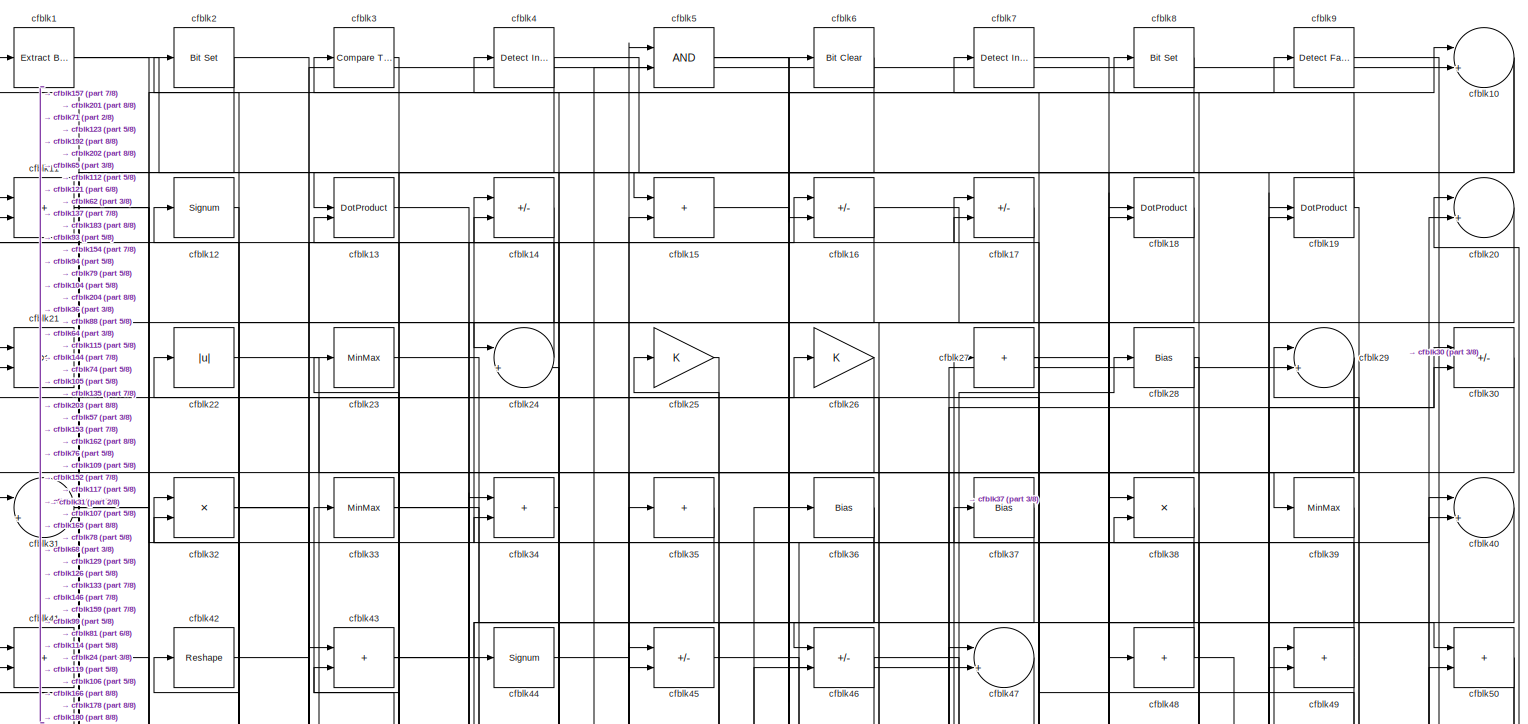
[diagram: root canvas - part 1/8, full width, top band]
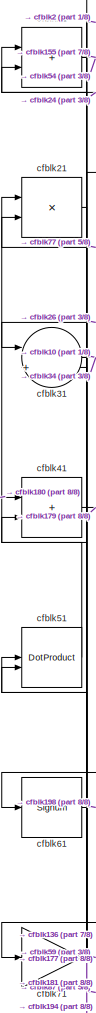
[diagram: root canvas - part 2/8, top left region]
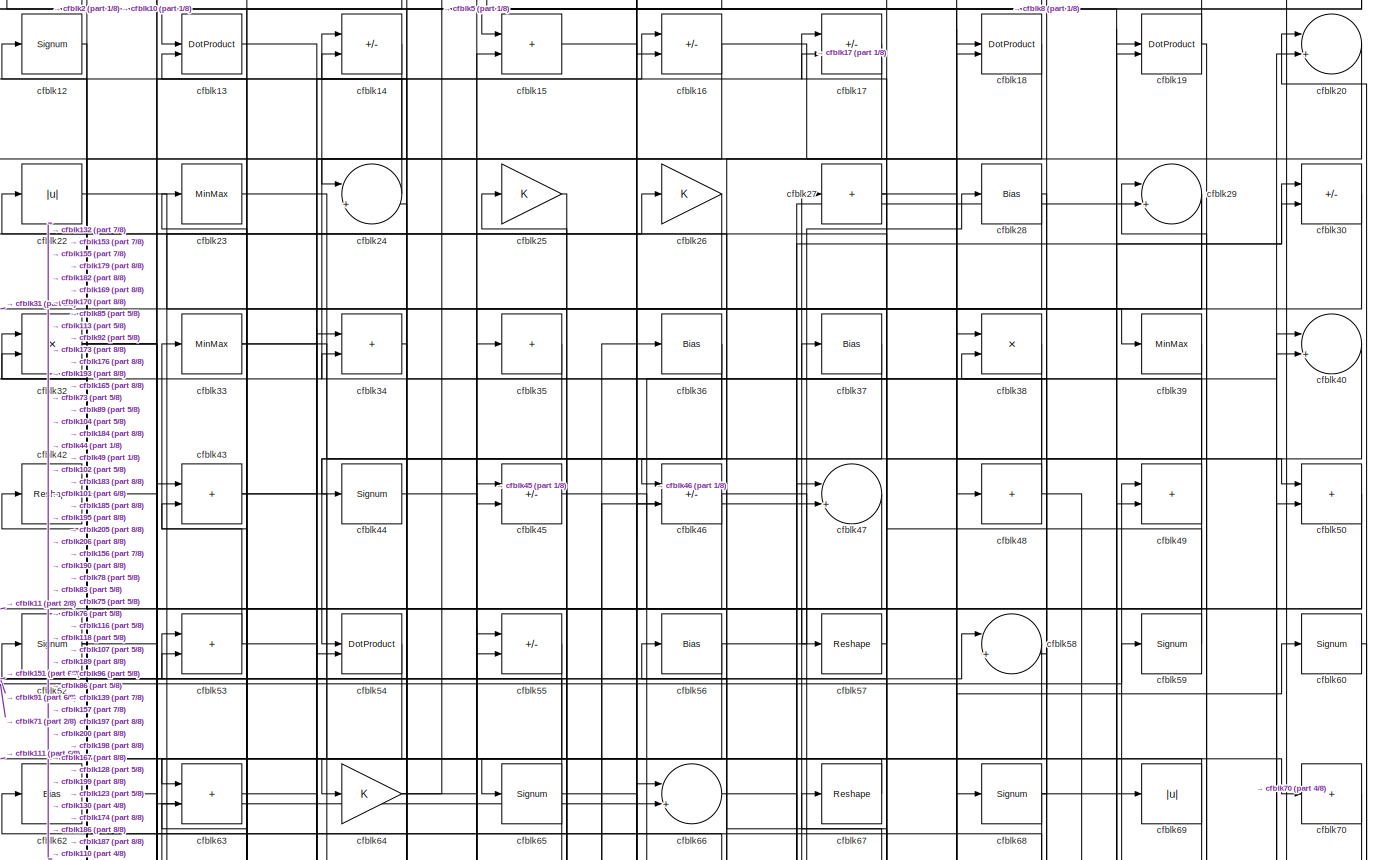
[diagram: root canvas - part 3/8, full width, top band]
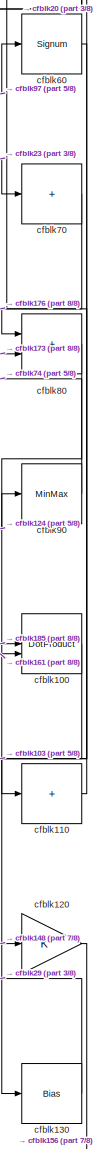
[diagram: root canvas - part 4/8, middle right region]
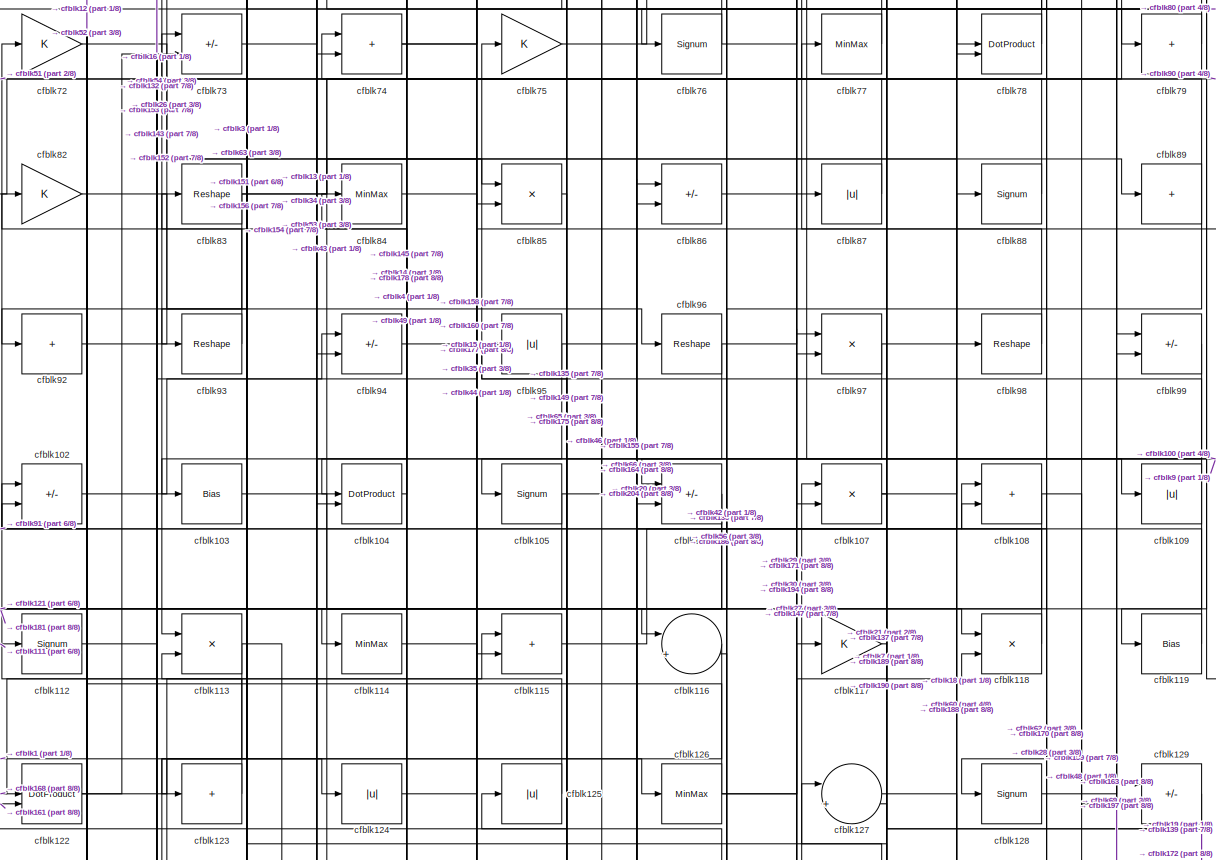
[diagram: root canvas - part 5/8, full width, middle band]
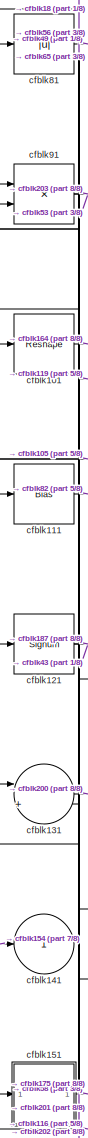
[diagram: root canvas - part 6/8, middle left region]
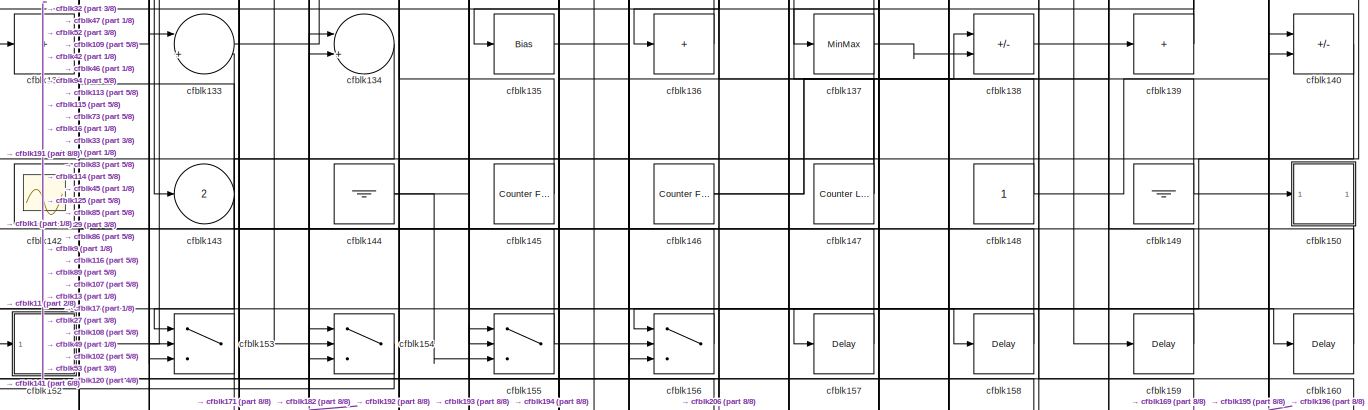
[diagram: root canvas - part 7/8, full width, bottom band]
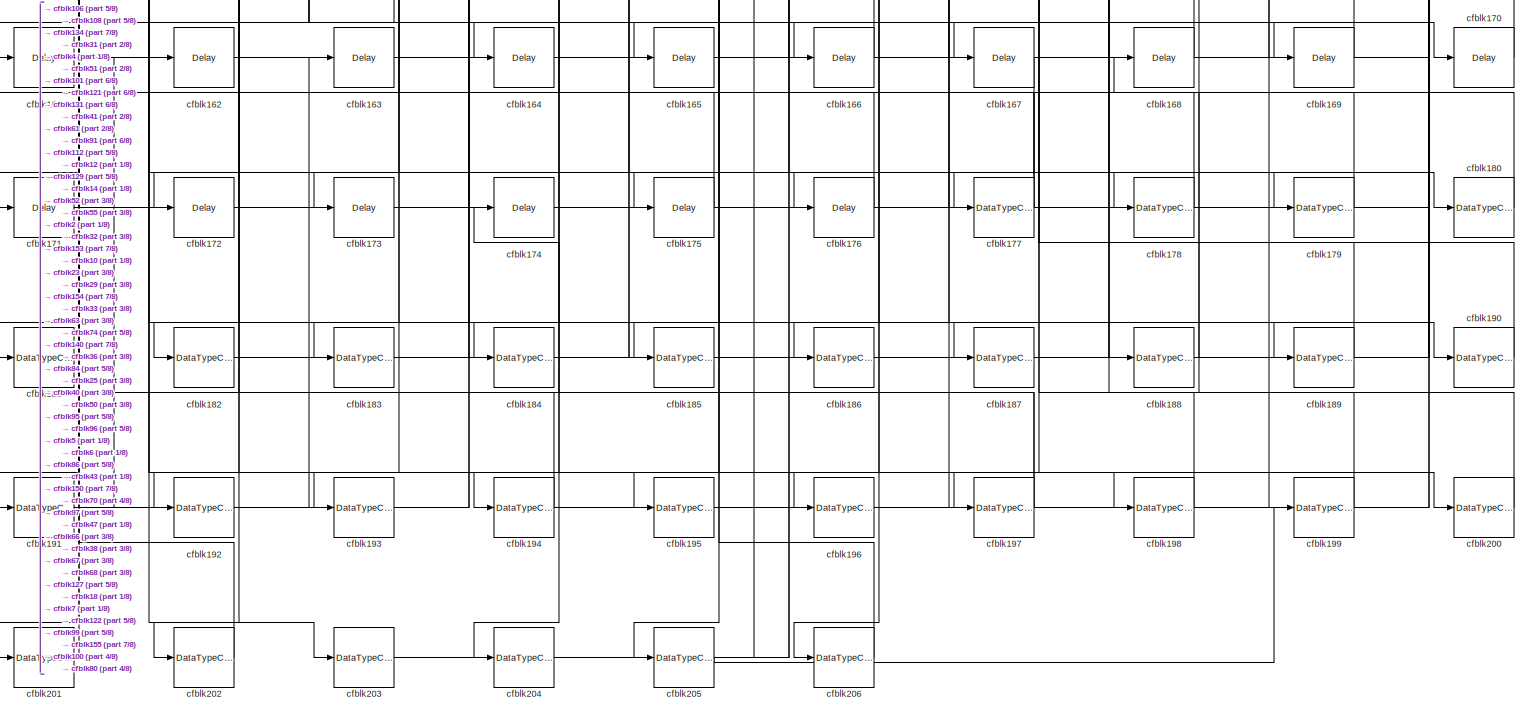
[diagram: root canvas - part 8/8, full width, bottom band]
MODEL slx_51adaf56659c
KIND model
CONFIG AbsTol = auto
CONFIG EnableMultiTasking = off
CONFIG FixedStep = auto
CONFIG MaxStep = auto
CONFIG MinStep = auto
CONFIG RelTol = 1e-3
CONFIG SampleTimeConstraint = Unconstrained
CONFIG SolverName = VariableStepAuto
CONFIG StartTime = 0.0
CONFIG StopTime = 10.0
BLOCK [Reference] cfblk1  REF=simulink/Logic and Bit
Operations/Extract Bits
  LibrarySourceBlock = hdlsllib/Logic and Bit\nOperations/Extract Bits
  SourceBlock = simulink/Logic and Bit\nOperations/Extract Bits
  SourceType = Extract Bits
BLOCK [Sum] cfblk10
  Inputs = |++
BLOCK [DotProduct] cfblk100
  OutDataTypeStr = Inherit: Inherit via internal rule
BLOCK [Reshape] cfblk101
BLOCK [Sum] cfblk102
  IconShape = rectangular
  Inputs = +-
BLOCK [Bias] cfblk103
  Bias = 0.0
  SaturateOnIntegerOverflow = off
BLOCK [DotProduct] cfblk104
  OutDataTypeStr = Inherit: Inherit via internal rule
BLOCK [Signum] cfblk105
BLOCK [Sum] cfblk106
  IconShape = rectangular
  Inputs = +-
BLOCK [Product] cfblk107
  Inputs = */
  RndMeth = Zero
  SaturateOnIntegerOverflow = on
BLOCK [Sum] cfblk108
  IconShape = rectangular
BLOCK [Abs] cfblk109
  SaturateOnIntegerOverflow = off
BLOCK [Sum] cfblk11
  IconShape = rectangular
BLOCK [Sum] cfblk110
  IconShape = rectangular
  Inputs = +
BLOCK [Bias] cfblk111
  Bias = 0.0
  SaturateOnIntegerOverflow = off
BLOCK [Signum] cfblk112
BLOCK [Product] cfblk113
  Inputs = */
  RndMeth = Zero
  SaturateOnIntegerOverflow = on
BLOCK [MinMax] cfblk114
BLOCK [Sum] cfblk115
  IconShape = rectangular
BLOCK [Sum] cfblk116
  Inputs = |++
BLOCK [Gain] cfblk117
BLOCK [Product] cfblk118
  Inputs = */
  RndMeth = Zero
  SaturateOnIntegerOverflow = on
BLOCK [Bias] cfblk119
  Bias = 0.0
  SaturateOnIntegerOverflow = off
BLOCK [Signum] cfblk12
BLOCK [Gain] cfblk120
BLOCK [Signum] cfblk121
BLOCK [DotProduct] cfblk122
  OutDataTypeStr = Inherit: Inherit via internal rule
BLOCK [Sum] cfblk123
  IconShape = rectangular
  Inputs = +
BLOCK [Abs] cfblk124
  SaturateOnIntegerOverflow = off
BLOCK [Abs] cfblk125
  SaturateOnIntegerOverflow = off
BLOCK [MinMax] cfblk126
BLOCK [Sum] cfblk127
  Inputs = |++
BLOCK [Signum] cfblk128
BLOCK [Sum] cfblk129
  IconShape = rectangular
  Inputs = +-
BLOCK [DotProduct] cfblk13
  OutDataTypeStr = Inherit: Inherit via internal rule
BLOCK [Bias] cfblk130
  Bias = 0.0
  SaturateOnIntegerOverflow = off
BLOCK [Sum] cfblk131
  Inputs = |++
BLOCK [Sum] cfblk132
  IconShape = rectangular
  Inputs = +
BLOCK [Sum] cfblk133
  Inputs = |++
BLOCK [Sum] cfblk134
  Inputs = |++
BLOCK [Bias] cfblk135
  Bias = 0.0
  SaturateOnIntegerOverflow = off
BLOCK [Sum] cfblk136
  IconShape = rectangular
  Inputs = +
BLOCK [MinMax] cfblk137
BLOCK [Sum] cfblk138
  IconShape = rectangular
  Inputs = +-
BLOCK [Sum] cfblk139
  IconShape = rectangular
  Inputs = +
BLOCK [Sum] cfblk14
  IconShape = rectangular
  Inputs = +-
BLOCK [Sum] cfblk140
  IconShape = rectangular
  Inputs = +-
BLOCK [Outport] cfblk141
  VectorParamsAs1DForOutWhenUnconnected = off
BLOCK [Scope] cfblk142
  Floating = on
  NumInputPorts = 1
  ScopeSpecificationString = Simulink.scopes.TimeScopeBlockCfg('CurrentConfiguration', extmgr.ConfigurationSet(extmgr.Configuration('Core','General UI',true,'FigureColor',[0.156862745098039 0.156862745098039 0.156862745098039]),extmgr.Configuration('Core','Source UI',true),extmgr.Configuration('Sources','WiredSimulink',true,'DataLoggingVariableName','ScopeData1','DataLoggingSaveFormat','StructureWithTime','DataLoggingLimitDat...<+2713ch>
BLOCK [Outport] cfblk143
  Port = 2
  VectorParamsAs1DForOutWhenUnconnected = off
BLOCK [Ground] cfblk144
BLOCK [Reference] cfblk145  REF=hdlsllib/Sources/Counter
Free-Running
  SourceBlock = hdlsllib/Sources/Counter\nFree-Running
  SourceType = Counter Free-Running
BLOCK [Reference] cfblk146  REF=hdlsllib/Sources/Counter
Free-Running
  SourceBlock = hdlsllib/Sources/Counter\nFree-Running
  SourceType = Counter Free-Running
BLOCK [Reference] cfblk147  REF=hdlsllib/Sources/Counter
Limited
  SourceBlock = hdlsllib/Sources/Counter\nLimited
  SourceType = Counter Limited
BLOCK [Constant] cfblk148
  SampleTime = -1
BLOCK [Ground] cfblk149
BLOCK [Sum] cfblk15
  IconShape = rectangular
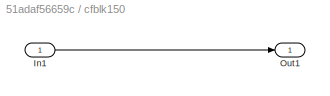
BLOCK [SubSystem] cfblk150
  LibrarySourceBlock = hdlsllib/Ports &\nSubsystems/Subsystem
BLOCK [Inport] cfblk150/In1
BLOCK [Outport] cfblk150/Out1
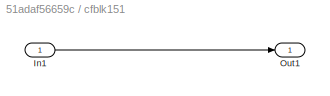
BLOCK [SubSystem] cfblk151
  LibrarySourceBlock = hdlsllib/Ports &\nSubsystems/Subsystem
BLOCK [Inport] cfblk151/In1
BLOCK [Outport] cfblk151/Out1
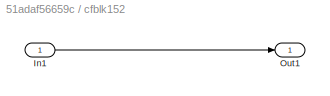
BLOCK [SubSystem] cfblk152
  LibrarySourceBlock = hdlsllib/Ports &\nSubsystems/Subsystem
BLOCK [Inport] cfblk152/In1
BLOCK [Outport] cfblk152/Out1
BLOCK [Switch] cfblk153
  InputSameDT = off
  SaturateOnIntegerOverflow = off
BLOCK [Switch] cfblk154
  InputSameDT = off
  SaturateOnIntegerOverflow = off
BLOCK [Switch] cfblk155
  InputSameDT = off
  SaturateOnIntegerOverflow = off
BLOCK [Switch] cfblk156
  InputSameDT = off
  SaturateOnIntegerOverflow = off
BLOCK [Delay] cfblk157
  InputPortMap = u0
  SampleTime = 1
BLOCK [Delay] cfblk158
  InputPortMap = u0
  SampleTime = 1
BLOCK [Delay] cfblk159
  InputPortMap = u0
  SampleTime = 1
BLOCK [Sum] cfblk16
  IconShape = rectangular
  Inputs = +-
BLOCK [Delay] cfblk160
  InputPortMap = u0
  SampleTime = 1
BLOCK [Delay] cfblk161
  InputPortMap = u0
  SampleTime = 1
BLOCK [Delay] cfblk162
  InputPortMap = u0
  SampleTime = 1
BLOCK [Delay] cfblk163
  InputPortMap = u0
  SampleTime = 1
BLOCK [Delay] cfblk164
  InputPortMap = u0
  SampleTime = 1
BLOCK [Delay] cfblk165
  InputPortMap = u0
  SampleTime = 1
BLOCK [Delay] cfblk166
  InputPortMap = u0
  SampleTime = 1
BLOCK [Delay] cfblk167
  InputPortMap = u0
  SampleTime = 1
BLOCK [Delay] cfblk168
  InputPortMap = u0
  SampleTime = 1
BLOCK [Delay] cfblk169
  InputPortMap = u0
  SampleTime = 1
BLOCK [Sum] cfblk17
  IconShape = rectangular
  Inputs = +-
BLOCK [Delay] cfblk170
  InputPortMap = u0
  SampleTime = 1
BLOCK [Delay] cfblk171
  InputPortMap = u0
  SampleTime = 1
BLOCK [Delay] cfblk172
  InputPortMap = u0
  SampleTime = 1
BLOCK [Delay] cfblk173
  InputPortMap = u0
  SampleTime = 1
BLOCK [Delay] cfblk174
  InputPortMap = u0
  SampleTime = 1
BLOCK [Delay] cfblk175
  InputPortMap = u0
  SampleTime = 1
BLOCK [Delay] cfblk176
  InputPortMap = u0
  SampleTime = 1
BLOCK [DataTypeConversion] cfblk177
  RndMeth = Floor
  SaturateOnIntegerOverflow = off
BLOCK [DataTypeConversion] cfblk178
  OutDataTypeStr = uint8
  RndMeth = Floor
  SaturateOnIntegerOverflow = off
BLOCK [DataTypeConversion] cfblk179
  OutDataTypeStr = uint8
  RndMeth = Floor
  SaturateOnIntegerOverflow = off
BLOCK [DotProduct] cfblk18
  OutDataTypeStr = Inherit: Inherit via internal rule
BLOCK [DataTypeConversion] cfblk180
  OutDataTypeStr = uint8
  RndMeth = Floor
  SaturateOnIntegerOverflow = off
BLOCK [DataTypeConversion] cfblk181
  OutDataTypeStr = uint8
  RndMeth = Floor
  SaturateOnIntegerOverflow = off
BLOCK [DataTypeConversion] cfblk182
  RndMeth = Floor
  SaturateOnIntegerOverflow = off
BLOCK [DataTypeConversion] cfblk183
  OutDataTypeStr = uint8
  RndMeth = Floor
  SaturateOnIntegerOverflow = off
BLOCK [DataTypeConversion] cfblk184
  OutDataTypeStr = uint8
  RndMeth = Floor
  SaturateOnIntegerOverflow = off
BLOCK [DataTypeConversion] cfblk185
  OutDataTypeStr = uint8
  RndMeth = Floor
  SaturateOnIntegerOverflow = off
BLOCK [DataTypeConversion] cfblk186
  OutDataTypeStr = uint8
  RndMeth = Floor
  SaturateOnIntegerOverflow = off
BLOCK [DataTypeConversion] cfblk187
  OutDataTypeStr = uint8
  RndMeth = Floor
  SaturateOnIntegerOverflow = off
BLOCK [DataTypeConversion] cfblk188
  OutDataTypeStr = uint8
  RndMeth = Floor
  SaturateOnIntegerOverflow = off
BLOCK [DataTypeConversion] cfblk189
  OutDataTypeStr = uint8
  RndMeth = Floor
  SaturateOnIntegerOverflow = off
BLOCK [DotProduct] cfblk19
  OutDataTypeStr = Inherit: Inherit via internal rule
BLOCK [DataTypeConversion] cfblk190
  OutDataTypeStr = uint8
  RndMeth = Floor
  SaturateOnIntegerOverflow = off
BLOCK [DataTypeConversion] cfblk191
  RndMeth = Floor
  SaturateOnIntegerOverflow = off
BLOCK [DataTypeConversion] cfblk192
  OutDataTypeStr = uint8
  RndMeth = Floor
  SaturateOnIntegerOverflow = off
BLOCK [DataTypeConversion] cfblk193
  OutDataTypeStr = uint8
  RndMeth = Floor
  SaturateOnIntegerOverflow = off
BLOCK [DataTypeConversion] cfblk194
  RndMeth = Floor
  SaturateOnIntegerOverflow = off
BLOCK [DataTypeConversion] cfblk195
  OutDataTypeStr = uint8
  RndMeth = Floor
  SaturateOnIntegerOverflow = off
BLOCK [DataTypeConversion] cfblk196
  OutDataTypeStr = uint8
  RndMeth = Floor
  SaturateOnIntegerOverflow = off
BLOCK [DataTypeConversion] cfblk197
  RndMeth = Floor
  SaturateOnIntegerOverflow = off
BLOCK [DataTypeConversion] cfblk198
  OutDataTypeStr = uint8
  RndMeth = Floor
  SaturateOnIntegerOverflow = off
BLOCK [DataTypeConversion] cfblk199
  OutDataTypeStr = uint8
  RndMeth = Floor
  SaturateOnIntegerOverflow = off
BLOCK [Reference] cfblk2  REF=simulink/Logic and Bit
Operations/Bit Set
  LibrarySourceBlock = hdlsllib/Logic and Bit\nOperations/Bit Set
  SourceBlock = simulink/Logic and Bit\nOperations/Bit Set
  SourceType = Bit Set
BLOCK [Sum] cfblk20
  Inputs = |++
BLOCK [DataTypeConversion] cfblk200
  OutDataTypeStr = uint8
  RndMeth = Floor
  SaturateOnIntegerOverflow = off
BLOCK [DataTypeConversion] cfblk201
  OutDataTypeStr = uint8
  RndMeth = Floor
  SaturateOnIntegerOverflow = off
BLOCK [DataTypeConversion] cfblk202
  OutDataTypeStr = uint8
  RndMeth = Floor
  SaturateOnIntegerOverflow = off
BLOCK [DataTypeConversion] cfblk203
  OutDataTypeStr = boolean
  RndMeth = Floor
  SaturateOnIntegerOverflow = off
BLOCK [DataTypeConversion] cfblk204
  OutDataTypeStr = uint8
  RndMeth = Floor
  SaturateOnIntegerOverflow = off
BLOCK [DataTypeConversion] cfblk205
  RndMeth = Floor
  SaturateOnIntegerOverflow = off
BLOCK [DataTypeConversion] cfblk206
  OutDataTypeStr = uint8
  RndMeth = Floor
  SaturateOnIntegerOverflow = off
BLOCK [Product] cfblk21
  Inputs = */
  RndMeth = Zero
  SaturateOnIntegerOverflow = on
BLOCK [Abs] cfblk22
  SaturateOnIntegerOverflow = off
BLOCK [MinMax] cfblk23
BLOCK [Sum] cfblk24
  Inputs = |++
BLOCK [Gain] cfblk25
BLOCK [Gain] cfblk26
BLOCK [Sum] cfblk27
  IconShape = rectangular
  Inputs = +
BLOCK [Bias] cfblk28
  Bias = 0.0
  SaturateOnIntegerOverflow = off
BLOCK [Sum] cfblk29
  Inputs = |++
BLOCK [Reference] cfblk3  REF=hdlsllib/Logic and Bit
Operations/Compare
To Zero
  SourceBlock = hdlsllib/Logic and Bit\nOperations/Compare\nTo Zero
  SourceType = Compare To Zero
BLOCK [Sum] cfblk30
  IconShape = rectangular
  Inputs = +-
BLOCK [Sum] cfblk31
  Inputs = |++
BLOCK [Product] cfblk32
  Inputs = */
  RndMeth = Zero
  SaturateOnIntegerOverflow = on
BLOCK [MinMax] cfblk33
BLOCK [Sum] cfblk34
  IconShape = rectangular
BLOCK [Sum] cfblk35
  IconShape = rectangular
  Inputs = +
BLOCK [Bias] cfblk36
  Bias = 0.0
  SaturateOnIntegerOverflow = off
BLOCK [Bias] cfblk37
  Bias = 0.0
  SaturateOnIntegerOverflow = off
BLOCK [Product] cfblk38
  Inputs = */
  RndMeth = Zero
  SaturateOnIntegerOverflow = on
BLOCK [MinMax] cfblk39
BLOCK [Reference] cfblk4  REF=simulink/Logic and Bit
Operations/Detect
Increase
  LibrarySourceBlock = hdlsllib/Logic and Bit\nOperations/Detect\nIncrease
  SourceBlock = simulink/Logic and Bit\nOperations/Detect\nIncrease
  SourceType = Detect Increase
BLOCK [Sum] cfblk40
  Inputs = |++
BLOCK [Sum] cfblk41
  IconShape = rectangular
BLOCK [Reshape] cfblk42
BLOCK [Sum] cfblk43
  IconShape = rectangular
BLOCK [Signum] cfblk44
BLOCK [Sum] cfblk45
  IconShape = rectangular
  Inputs = +-
BLOCK [Sum] cfblk46
  IconShape = rectangular
  Inputs = +-
BLOCK [Sum] cfblk47
  Inputs = |++
BLOCK [Sum] cfblk48
  IconShape = rectangular
  Inputs = +
BLOCK [Sum] cfblk49
  IconShape = rectangular
BLOCK [Logic] cfblk5
  AllPortsSameDT = off
  OutDataTypeStr = boolean
BLOCK [Sum] cfblk50
  IconShape = rectangular
BLOCK [DotProduct] cfblk51
  OutDataTypeStr = Inherit: Inherit via internal rule
BLOCK [Signum] cfblk52
BLOCK [Sum] cfblk53
  IconShape = rectangular
BLOCK [DotProduct] cfblk54
  OutDataTypeStr = Inherit: Inherit via internal rule
BLOCK [Sum] cfblk55
  IconShape = rectangular
  Inputs = +-
BLOCK [Bias] cfblk56
  Bias = 0.0
  SaturateOnIntegerOverflow = off
BLOCK [Reshape] cfblk57
BLOCK [Sum] cfblk58
  Inputs = |++
BLOCK [Signum] cfblk59
BLOCK [Reference] cfblk6  REF=simulink/Logic and Bit
Operations/Bit Clear
  LibrarySourceBlock = hdlsllib/Logic and Bit\nOperations/Bit Clear
  SourceBlock = simulink/Logic and Bit\nOperations/Bit Clear
  SourceType = Bit Clear
BLOCK [Signum] cfblk60
BLOCK [Signum] cfblk61
BLOCK [Bias] cfblk62
  Bias = 0.0
  SaturateOnIntegerOverflow = off
BLOCK [Sum] cfblk63
  IconShape = rectangular
BLOCK [Gain] cfblk64
BLOCK [Signum] cfblk65
BLOCK [Sum] cfblk66
  Inputs = |++
BLOCK [Reshape] cfblk67
BLOCK [Signum] cfblk68
BLOCK [Abs] cfblk69
  SaturateOnIntegerOverflow = off
BLOCK [Reference] cfblk7  REF=simulink/Logic and Bit
Operations/Detect
Increase
  LibrarySourceBlock = hdlsllib/Logic and Bit\nOperations/Detect\nIncrease
  SourceBlock = simulink/Logic and Bit\nOperations/Detect\nIncrease
  SourceType = Detect Increase
BLOCK [Sum] cfblk70
  IconShape = rectangular
  Inputs = +
BLOCK [Gain] cfblk71
BLOCK [Gain] cfblk72
BLOCK [Sum] cfblk73
  IconShape = rectangular
  Inputs = +-
BLOCK [Sum] cfblk74
  IconShape = rectangular
BLOCK [Gain] cfblk75
BLOCK [Signum] cfblk76
BLOCK [MinMax] cfblk77
BLOCK [DotProduct] cfblk78
  OutDataTypeStr = Inherit: Inherit via internal rule
BLOCK [Sum] cfblk79
  IconShape = rectangular
  Inputs = +
BLOCK [Reference] cfblk8  REF=simulink/Logic and Bit
Operations/Bit Set
  LibrarySourceBlock = hdlsllib/Logic and Bit\nOperations/Bit Set
  SourceBlock = simulink/Logic and Bit\nOperations/Bit Set
  SourceType = Bit Set
BLOCK [Sum] cfblk80
  IconShape = rectangular
BLOCK [Abs] cfblk81
  SaturateOnIntegerOverflow = off
BLOCK [Gain] cfblk82
BLOCK [Reshape] cfblk83
BLOCK [MinMax] cfblk84
BLOCK [Product] cfblk85
  Inputs = */
  RndMeth = Zero
  SaturateOnIntegerOverflow = on
BLOCK [Sum] cfblk86
  IconShape = rectangular
  Inputs = +-
BLOCK [Abs] cfblk87
  SaturateOnIntegerOverflow = off
BLOCK [Signum] cfblk88
BLOCK [Sum] cfblk89
  IconShape = rectangular
  Inputs = +
BLOCK [Reference] cfblk9  REF=hdlsllib/Logic and Bit
Operations/Detect Fall
Nonpositive
  SourceBlock = hdlsllib/Logic and Bit\nOperations/Detect Fall\nNonpositive
  SourceType = Detect Fall Nonpositive
BLOCK [MinMax] cfblk90
BLOCK [Product] cfblk91
  Inputs = */
  RndMeth = Zero
  SaturateOnIntegerOverflow = on
BLOCK [Sum] cfblk92
  IconShape = rectangular
  Inputs = +
BLOCK [Reshape] cfblk93
BLOCK [Sum] cfblk94
  IconShape = rectangular
  Inputs = +-
BLOCK [Abs] cfblk95
  SaturateOnIntegerOverflow = off
BLOCK [Reshape] cfblk96
BLOCK [Product] cfblk97
  Inputs = */
  RndMeth = Zero
  SaturateOnIntegerOverflow = on
BLOCK [Reshape] cfblk98
BLOCK [Sum] cfblk99
  IconShape = rectangular
  Inputs = +-
LINE cfblk100:1 -> cfblk103:1
LINE cfblk101:1 -> cfblk164:1
LINE cfblk102:1 -> cfblk35:1
LINE cfblk103:1 -> cfblk118:1
LINE cfblk104:1 -> cfblk4:1
NET cfblk105:1 -> cfblk121:1, cfblk46:2
NET cfblk106:1 -> cfblk122:2, cfblk161:1
NET cfblk107:1 -> cfblk137:1, cfblk18:2
NET cfblk108:1 -> cfblk159:1, cfblk181:1
NET cfblk109:1 -> cfblk153:2, cfblk75:1
NET cfblk10:1 -> cfblk13:1, cfblk183:1
LINE cfblk110:1 -> cfblk20:1
LINE cfblk111:1 -> cfblk82:1
LINE cfblk112:1 -> cfblk16:1
NET cfblk113:1 -> cfblk143:1, cfblk154:2
LINE cfblk114:1 -> cfblk158:1
LINE cfblk115:1 -> cfblk88:1
LINE cfblk116:1 -> cfblk151:1
LINE cfblk117:1 -> cfblk7:1
LINE cfblk118:1 -> cfblk56:1
LINE cfblk119:1 -> cfblk91:1
NET cfblk11:1 -> cfblk155:2, cfblk54:2
LINE cfblk120:1 -> cfblk156:1
NET cfblk121:1 -> cfblk187:1, cfblk43:1
NET cfblk122:1 -> cfblk124:1, cfblk73:2
LINE cfblk123:1 -> cfblk12:1
LINE cfblk124:1 -> cfblk90:1
LINE cfblk125:1 -> cfblk113:2
NET cfblk126:1 -> cfblk102:1, cfblk117:1, cfblk118:2
LINE cfblk127:1 -> cfblk188:1
LINE cfblk128:1 -> cfblk69:1
LINE cfblk129:1 -> cfblk172:1
LINE cfblk12:1 -> cfblk202:1
LINE cfblk130:1 -> cfblk29:1
LINE cfblk131:1 -> cfblk200:1
LINE cfblk132:1 -> cfblk94:1
LINE cfblk133:1 -> cfblk19:2
LINE cfblk134:1 -> cfblk191:1
LINE cfblk135:1 -> cfblk9:1
LINE cfblk136:1 -> cfblk11:1
NET cfblk137:1 -> cfblk138:2, cfblk13:2, cfblk153:1
LINE cfblk138:1 -> cfblk139:1
NET cfblk139:1 -> cfblk102:2, cfblk53:1
LINE cfblk13:1 -> cfblk94:2
LINE cfblk140:1 -> cfblk194:1
NET cfblk144:1 -> cfblk155:3, cfblk45:1
LINE cfblk145:1 -> cfblk83:1
NET cfblk146:1 -> cfblk138:1, cfblk49:2
NET cfblk147:1 -> cfblk107:1, cfblk116:2
NET cfblk148:1 -> cfblk120:1, cfblk17:1
NET cfblk149:1 -> cfblk125:1, cfblk150:1
LINE cfblk14:1 -> cfblk192:1
LINE cfblk150/In1:1 -> cfblk150/Out1:1
LINE cfblk150:1 -> cfblk206:1
LINE cfblk151/In1:1 -> cfblk151/Out1:1
LINE cfblk151:1 -> cfblk58:1
LINE cfblk152/In1:1 -> cfblk152/Out1:1
LINE cfblk152:1 -> cfblk115:1
NET cfblk153:1 -> cfblk171:1, cfblk32:1
LINE cfblk154:1 -> cfblk141:1
NET cfblk155:1 -> cfblk108:1, cfblk32:2
LINE cfblk156:1 -> cfblk73:1
LINE cfblk157:1 -> cfblk1:1
LINE cfblk158:1 -> cfblk86:1
LINE cfblk159:1 -> cfblk19:1
LINE cfblk15:1 -> cfblk47:2
LINE cfblk160:1 -> cfblk133:2
LINE cfblk161:1 -> cfblk100:2
LINE cfblk162:1 -> cfblk47:1
LINE cfblk163:1 -> cfblk99:2
LINE cfblk164:1 -> cfblk106:2
LINE cfblk165:1 -> cfblk18:1
LINE cfblk166:1 -> cfblk43:2
LINE cfblk167:1 -> cfblk196:1
LINE cfblk168:1 -> cfblk122:1
LINE cfblk169:1 -> cfblk155:1
NET cfblk16:1 -> cfblk154:3, cfblk78:1
LINE cfblk170:1 -> cfblk108:2
LINE cfblk171:1 -> cfblk97:2
LINE cfblk172:1 -> cfblk74:2
LINE cfblk173:1 -> cfblk80:2
LINE cfblk174:1 -> cfblk50:2
LINE cfblk175:1 -> cfblk91:2
LINE cfblk176:1 -> cfblk23:1
NET cfblk177:1 -> cfblk31:2, cfblk95:1
LINE cfblk178:1 -> cfblk84:1
LINE cfblk179:1 -> cfblk52:1
LINE cfblk17:1 -> cfblk24:1
LINE cfblk180:1 -> cfblk41:1
LINE cfblk181:1 -> cfblk41:2
NET cfblk182:1 -> cfblk154:1, cfblk68:1
LINE cfblk183:1 -> cfblk55:1
LINE cfblk184:1 -> cfblk55:2
LINE cfblk185:1 -> cfblk100:1
LINE cfblk186:1 -> cfblk40:1
LINE cfblk187:1 -> cfblk40:2
LINE cfblk188:1 -> cfblk168:1
LINE cfblk189:1 -> cfblk127:1
LINE cfblk18:1 -> cfblk81:1
LINE cfblk190:1 -> cfblk127:2
NET cfblk191:1 -> cfblk162:1, cfblk163:1
LINE cfblk192:1 -> cfblk134:1
LINE cfblk193:1 -> cfblk134:2
NET cfblk194:1 -> cfblk51:2, cfblk97:1
LINE cfblk195:1 -> cfblk140:1
LINE cfblk196:1 -> cfblk140:2
NET cfblk197:1 -> cfblk112:1, cfblk129:1, cfblk174:1
LINE cfblk198:1 -> cfblk38:1
LINE cfblk199:1 -> cfblk38:2
NET cfblk19:1 -> cfblk119:1, cfblk3:1
NET cfblk1:1 -> cfblk126:1, cfblk99:1
LINE cfblk200:1 -> cfblk67:1
LINE cfblk201:1 -> cfblk131:1
LINE cfblk202:1 -> cfblk131:2
LINE cfblk203:1 -> cfblk6:1
LINE cfblk204:1 -> cfblk86:2
NET cfblk205:1 -> cfblk199:1, cfblk36:1
LINE cfblk206:1 -> cfblk25:1
LINE cfblk20:1 -> cfblk116:1
LINE cfblk21:1 -> cfblk61:1
LINE cfblk22:1 -> cfblk39:1
LINE cfblk23:1 -> cfblk70:1
LINE cfblk24:1 -> cfblk11:2
LINE cfblk25:1 -> cfblk205:1
LINE cfblk26:1 -> cfblk31:1
NET cfblk27:1 -> cfblk157:1, cfblk50:1
NET cfblk28:1 -> cfblk107:2, cfblk128:1
NET cfblk29:1 -> cfblk156:2, cfblk173:1
NET cfblk2:1 -> cfblk166:1, cfblk71:1
LINE cfblk30:1 -> cfblk45:2
NET cfblk31:1 -> cfblk10:1, cfblk34:2
NET cfblk32:1 -> cfblk169:1, cfblk170:1, cfblk66:2
NET cfblk33:1 -> cfblk156:3, cfblk190:1
LINE cfblk34:1 -> cfblk104:1
LINE cfblk35:1 -> cfblk54:1
NET cfblk36:1 -> cfblk184:1, cfblk44:1
LINE cfblk37:1 -> cfblk46:1
LINE cfblk38:1 -> cfblk197:1
LINE cfblk39:1 -> cfblk58:2
LINE cfblk3:1 -> cfblk93:1
LINE cfblk40:1 -> cfblk185:1
LINE cfblk41:1 -> cfblk179:1
LINE cfblk42:1 -> cfblk133:1
NET cfblk43:1 -> cfblk17:2, cfblk79:1
LINE cfblk44:1 -> cfblk115:2
LINE cfblk45:1 -> cfblk57:1
NET cfblk46:1 -> cfblk109:1, cfblk153:3
LINE cfblk47:1 -> cfblk152:1
NET cfblk48:1 -> cfblk129:2, cfblk14:1
NET cfblk49:1 -> cfblk114:1, cfblk24:2
NET cfblk4:1 -> cfblk201:1, cfblk48:1
NET cfblk50:1 -> cfblk193:1, cfblk195:1
LINE cfblk51:1 -> cfblk21:2
NET cfblk52:1 -> cfblk132:1, cfblk85:2
NET cfblk53:1 -> cfblk33:1, cfblk89:1
LINE cfblk54:1 -> cfblk113:1
LINE cfblk55:1 -> cfblk182:1
NET cfblk56:1 -> cfblk111:1, cfblk28:1
LINE cfblk57:1 -> cfblk37:1
LINE cfblk58:1 -> cfblk63:1
LINE cfblk59:1 -> cfblk22:1
NET cfblk5:1 -> cfblk16:2, cfblk178:1
LINE cfblk60:1 -> cfblk110:1
LINE cfblk61:1 -> cfblk198:1
LINE cfblk62:1 -> cfblk10:2
LINE cfblk63:1 -> cfblk165:1
NET cfblk64:1 -> cfblk5:1, cfblk5:2
NET cfblk65:1 -> cfblk101:1, cfblk2:1, cfblk78:2
LINE cfblk66:1 -> cfblk189:1
LINE cfblk67:1 -> cfblk65:1
NET cfblk68:1 -> cfblk167:1, cfblk30:2, cfblk8:1
NET cfblk69:1 -> cfblk123:1, cfblk64:1
LINE cfblk6:1 -> cfblk204:1
LINE cfblk70:1 -> cfblk176:1
LINE cfblk71:1 -> cfblk59:1
LINE cfblk72:1 -> cfblk98:1
LINE cfblk73:1 -> cfblk34:1
NET cfblk74:1 -> cfblk15:2, cfblk80:1
LINE cfblk75:1 -> cfblk20:2
NET cfblk76:1 -> cfblk30:1, cfblk42:1
LINE cfblk77:1 -> cfblk21:1
LINE cfblk78:1 -> cfblk62:1
LINE cfblk79:1 -> cfblk76:1
LINE cfblk7:1 -> cfblk180:1
LINE cfblk80:1 -> cfblk130:1
LINE cfblk81:1 -> cfblk49:1
LINE cfblk82:1 -> cfblk96:1
NET cfblk83:1 -> cfblk66:1, cfblk85:1, cfblk92:1
LINE cfblk84:1 -> cfblk177:1
LINE cfblk85:1 -> cfblk135:1
LINE cfblk86:1 -> cfblk27:1
LINE cfblk87:1 -> cfblk51:1
LINE cfblk88:1 -> cfblk14:2
NET cfblk89:1 -> cfblk136:1, cfblk63:2
LINE cfblk8:1 -> cfblk15:1
LINE cfblk90:1 -> cfblk74:1
NET cfblk91:1 -> cfblk203:1, cfblk53:2
LINE cfblk92:1 -> cfblk26:1
LINE cfblk93:1 -> cfblk72:1
LINE cfblk94:1 -> cfblk160:1
NET cfblk95:1 -> cfblk104:2, cfblk77:1
NET cfblk96:1 -> cfblk175:1, cfblk29:2
NET cfblk97:1 -> cfblk186:1, cfblk60:1
LINE cfblk98:1 -> cfblk87:1
LINE cfblk99:1 -> cfblk105:1
LINE cfblk9:1 -> cfblk106:1
note: NET lines group one-source signal fan-out (src -> all destinations, sorted); 1:1 wires keep LINE
